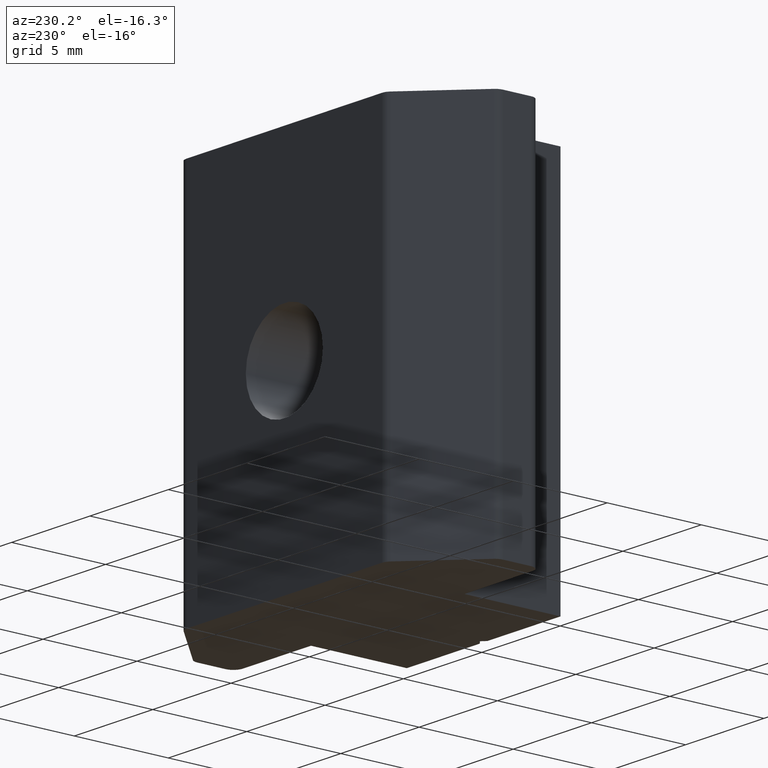
[diagram: clean part render]
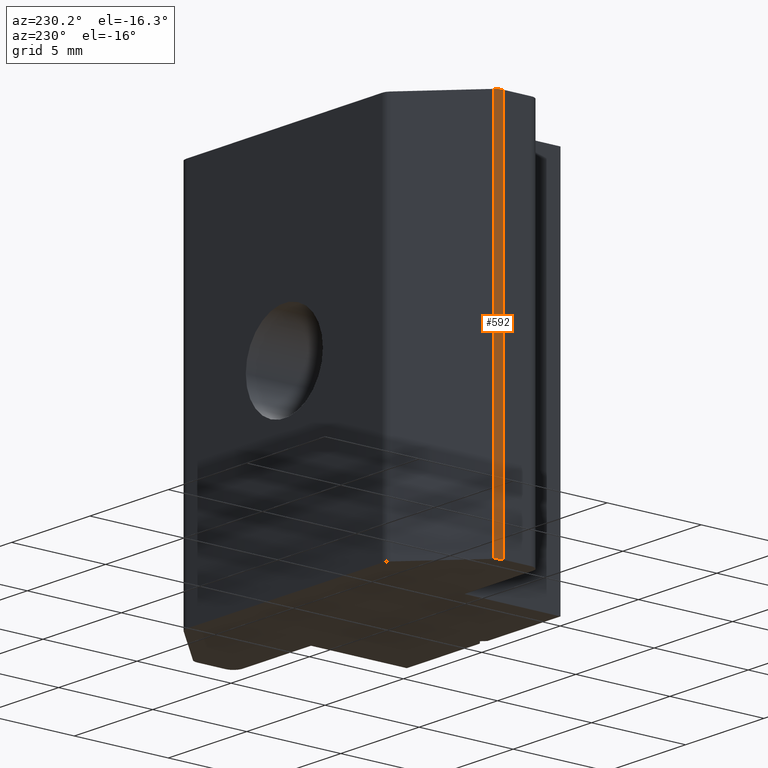
[diagram: same view with one face highlighted and labeled with its STEP entity id]
A machine part, auxiliary view. The second image highlights one B-rep face of the part: STEP entity #592.
In plain terms, the highlighted cylindrical surface (edge-blend (fillet) strip) has radius 0.5 mm, axis along (0, 0, 1).
Its self-contained STEP definition (entity closure, byte-faithful):
#52=FACE_OUTER_BOUND('',#82,.T.);
#82=EDGE_LOOP('',(#496,#497,#498,#499));
#144=LINE('',#1027,#199);
#145=LINE('',#1031,#200);
#199=VECTOR('',#804,10.);
#200=VECTOR('',#809,10.);
#226=CIRCLE('',#653,0.500000000000005);
#232=CIRCLE('',#665,0.500000000000005);
#271=VERTEX_POINT('',#985);
#272=VERTEX_POINT('',#987);
#286=VERTEX_POINT('',#1025);
#287=VERTEX_POINT('',#1029);
#344=EDGE_CURVE('',#271,#272,#226,.T.);
#364=EDGE_CURVE('',#271,#286,#144,.T.);
#365=EDGE_CURVE('',#287,#286,#232,.T.);
#366=EDGE_CURVE('',#272,#287,#145,.T.);
#496=ORIENTED_EDGE('',*,*,#364,.T.);
#497=ORIENTED_EDGE('',*,*,#365,.F.);
#498=ORIENTED_EDGE('',*,*,#366,.F.);
#499=ORIENTED_EDGE('',*,*,#344,.F.);
#568=CYLINDRICAL_SURFACE('',#664,0.500000000000005);
#592=ADVANCED_FACE('',(#52),#568,.T.);
#653=AXIS2_PLACEMENT_3D('',#988,#768,#769);
#664=AXIS2_PLACEMENT_3D('',#1028,#805,#806);
#665=AXIS2_PLACEMENT_3D('',#1030,#807,#808);
#768=DIRECTION('center_axis',(0.,0.,-1.));
#769=DIRECTION('ref_axis',(-0.707106781186548,0.707106781186547,0.));
#804=DIRECTION('',(0.,0.,1.));
#805=DIRECTION('center_axis',(0.,0.,1.));
#806=DIRECTION('ref_axis',(-0.707106781186548,0.707106781186547,0.));
#807=DIRECTION('center_axis',(0.,0.,1.));
#808=DIRECTION('ref_axis',(-0.707106781186548,0.707106781186547,0.));
#809=DIRECTION('',(0.,0.,1.));
#985=CARTESIAN_POINT('',(-9.75,2.,-10.));
#987=CARTESIAN_POINT('',(-9.60355339059328,2.35355339059327,-10.));
#988=CARTESIAN_POINT('Origin',(-9.25,2.,-10.));
#1025=CARTESIAN_POINT('',(-9.75,2.,10.));
#1027=CARTESIAN_POINT('',(-9.75,2.,0.));
#1028=CARTESIAN_POINT('Origin',(-9.25,2.,0.));
#1029=CARTESIAN_POINT('',(-9.60355339059328,2.35355339059327,10.));
#1030=CARTESIAN_POINT('Origin',(-9.25,2.,10.));
#1031=CARTESIAN_POINT('',(-9.60355339059328,2.35355339059327,0.));